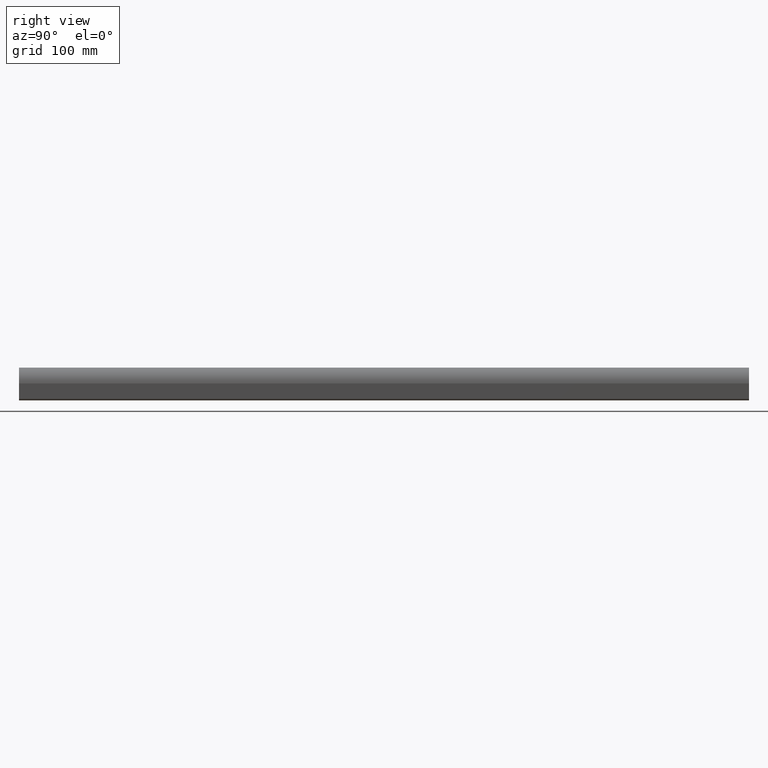
[diagram: clean part render]
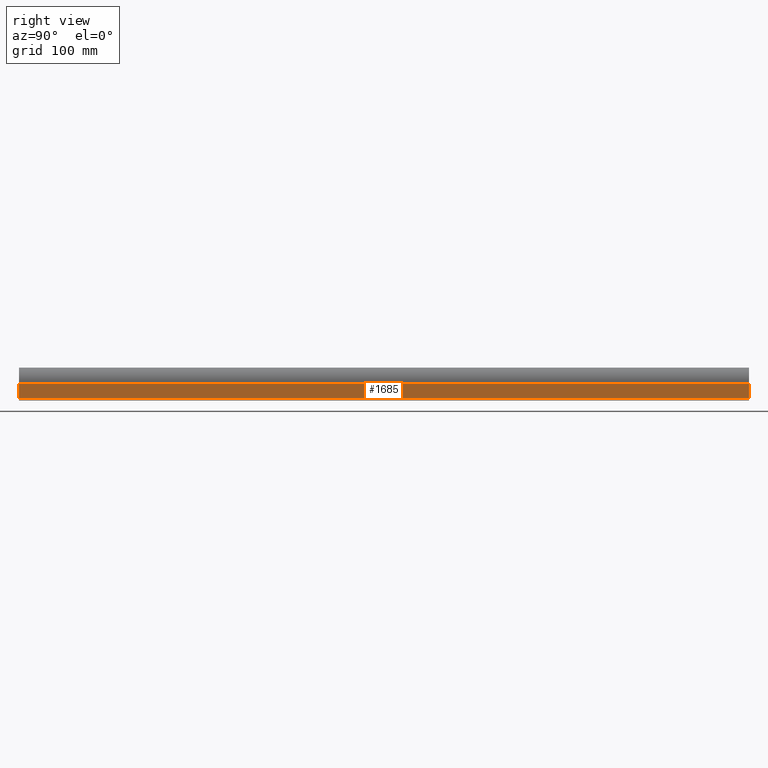
[diagram: same view with one face highlighted and labeled with its STEP entity id]
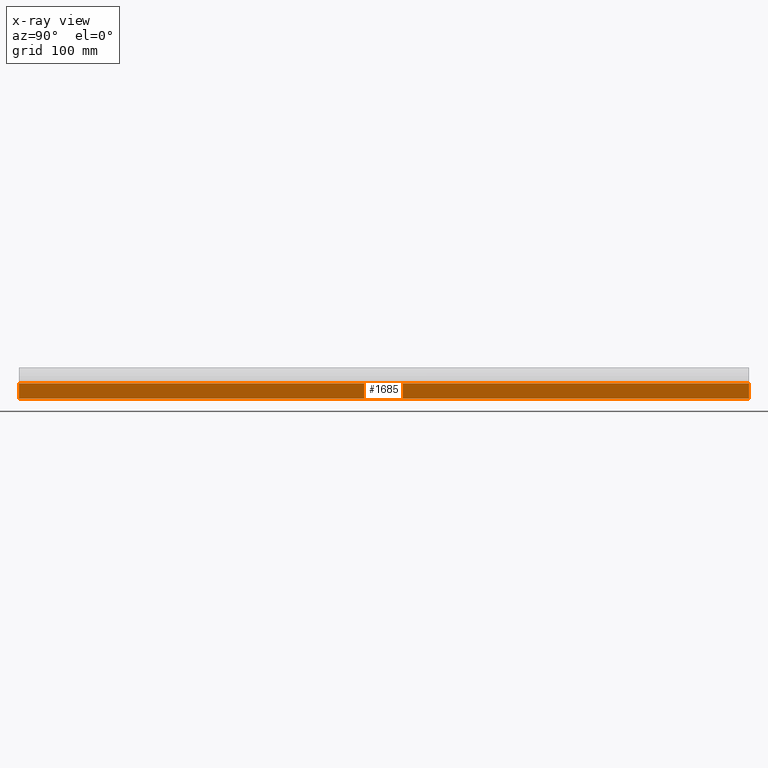
[diagram: x-ray of the same camera — body ghosted, the highlighted face saturated]
A machine part, right view. The second image highlights one B-rep face of the part: STEP entity #1685.
The next image is the same camera in x-ray: the body ghosted, the highlighted face saturated — about 0% of this face is hidden behind the body in this view.
In plain terms, the highlighted planar face has unit normal (1, 0, 0).
Its self-contained STEP definition (entity closure, byte-faithful):
#58=PLANE('',#1884);
#143=FACE_OUTER_BOUND('',#228,.T.);
#228=EDGE_LOOP('',(#1386,#1387,#1388,#1389));
#347=LINE('',#2792,#502);
#391=LINE('',#2897,#546);
#392=LINE('',#2899,#547);
#393=LINE('',#2900,#548);
#502=VECTOR('',#2297,10.);
#546=VECTOR('',#2393,10.);
#547=VECTOR('',#2396,10.);
#548=VECTOR('',#2397,10.);
#771=VERTEX_POINT('',#2788);
#773=VERTEX_POINT('',#2791);
#807=VERTEX_POINT('',#2893);
#808=VERTEX_POINT('',#2895);
#1002=EDGE_CURVE('',#771,#773,#347,.T.);
#1055=EDGE_CURVE('',#807,#808,#391,.T.);
#1056=EDGE_CURVE('',#807,#771,#392,.T.);
#1057=EDGE_CURVE('',#773,#808,#393,.T.);
#1386=ORIENTED_EDGE('',*,*,#1056,.F.);
#1387=ORIENTED_EDGE('',*,*,#1055,.T.);
#1388=ORIENTED_EDGE('',*,*,#1057,.F.);
#1389=ORIENTED_EDGE('',*,*,#1002,.F.);
#1685=ADVANCED_FACE('',(#143),#58,.T.);
#1884=AXIS2_PLACEMENT_3D('',#2898,#2394,#2395);
#2297=DIRECTION('',(0.,1.,0.));
#2393=DIRECTION('',(0.,1.,0.));
#2394=DIRECTION('center_axis',(1.,0.,0.));
#2395=DIRECTION('ref_axis',(0.,0.,-1.));
#2396=DIRECTION('',(0.,0.,1.));
#2397=DIRECTION('',(0.,0.,-1.));
#2788=CARTESIAN_POINT('',(22.4966734800407,0.,0.547162566309978));
#2791=CARTESIAN_POINT('',(22.4966734800407,1000.,0.547162566309978));
#2792=CARTESIAN_POINT('',(22.4966734800407,0.,0.547162566309978));
#2893=CARTESIAN_POINT('',(22.4966734800407,0.,-19.9900097349673));
#2895=CARTESIAN_POINT('',(22.4966734800407,1000.,-19.9900097349673));
#2897=CARTESIAN_POINT('',(22.4966734800407,0.,-19.9900097349673));
#2898=CARTESIAN_POINT('Origin',(22.4966734800407,0.,0.547162566309978));
#2899=CARTESIAN_POINT('',(22.4966734800407,0.,-19.9900097349673));
#2900=CARTESIAN_POINT('',(22.4966734800407,1000.,-19.9900097349673));